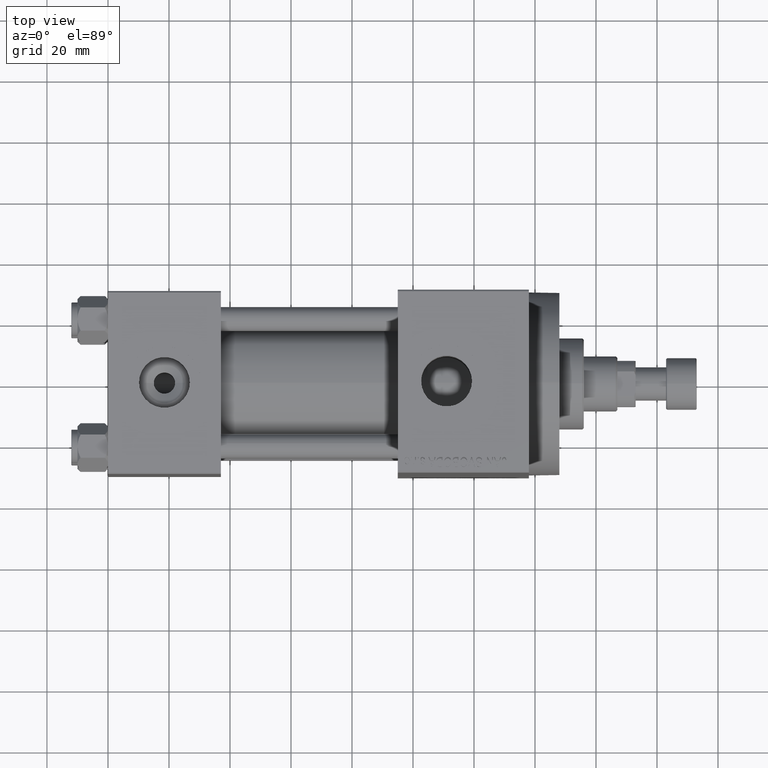
[diagram: clean part render]
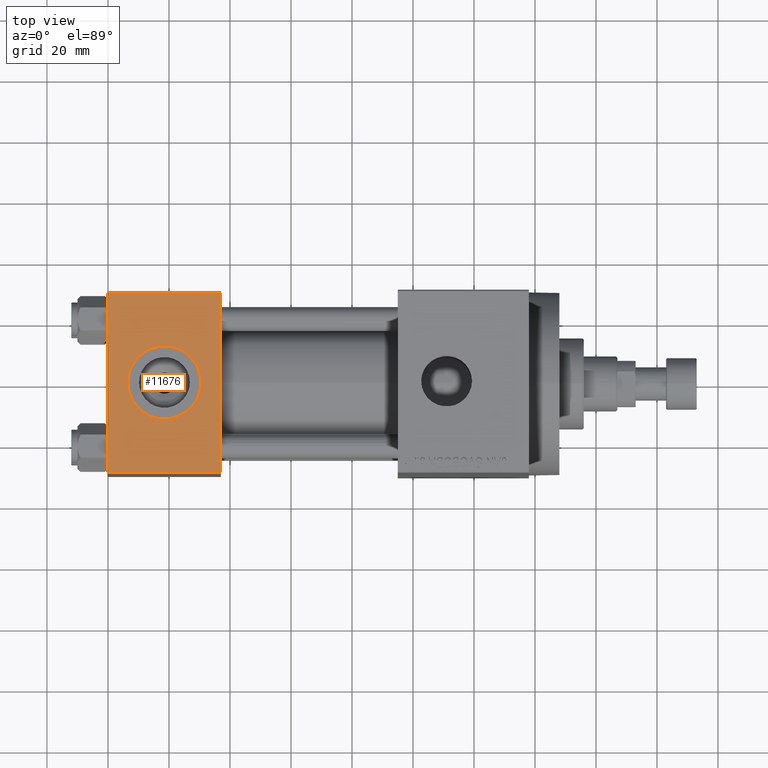
[diagram: same view with one face highlighted and labeled with its STEP entity id]
A machine part, top view. The second image highlights one B-rep face of the part: STEP entity #11676.
In plain terms, the highlighted planar face has unit normal (0, 0, -1).
Its self-contained STEP definition (entity closure, byte-faithful):
#3064 = EDGE_CURVE ( 'NONE', #12866, #40468, #8827, .T. ) ;
#3911 = VECTOR ( 'NONE', #22129, 1000.000000000000000 ) ;
#3927 = ORIENTED_EDGE ( 'NONE', *, *, #34819, .T. ) ;
#3991 = PLANE ( 'NONE',  #42038 ) ;
#5613 = ORIENTED_EDGE ( 'NONE', *, *, #38698, .T. ) ;
#5669 = LINE ( 'NONE', #20431, #3911 ) ;
#6142 = CARTESIAN_POINT ( 'NONE',  ( 37.00000000000000000, 29.99999999999999289, 30.00000000000000000 ) ) ;
#6536 = CARTESIAN_POINT ( 'NONE',  ( 6.499999999999997335, -1.999870792976790833E-15, 29.99999999999999645 ) ) ;
#7628 = FACE_BOUND ( 'NONE', #20194, .T. ) ;
#8827 = LINE ( 'NONE', #6142, #38722 ) ;
#11056 = VERTEX_POINT ( 'NONE', #18966 ) ;
#11676 = ADVANCED_FACE ( 'NONE', ( #7628, #36417 ), #3991, .F. ) ;
#11958 = LINE ( 'NONE', #37374, #44242 ) ;
#12866 = VERTEX_POINT ( 'NONE', #14831 ) ;
#14689 = VERTEX_POINT ( 'NONE', #6536 ) ;
#14831 = CARTESIAN_POINT ( 'NONE',  ( 37.00000000000000000, 29.49999999999999289, 30.00000000000000000 ) ) ;
#15793 = CARTESIAN_POINT ( 'NONE',  ( 37.00000000000000000, -29.49999999999998579, 29.99999999999999289 ) ) ;
#16074 = CARTESIAN_POINT ( 'NONE',  ( 0.000000000000000000, 29.49999999999999289, 30.00000000000000000 ) ) ;
#16411 = CARTESIAN_POINT ( 'NONE',  ( 0.000000000000000000, 29.99999999999999289, 30.00000000000000000 ) ) ;
#17151 = DIRECTION ( 'NONE',  ( 1.000000000000000000, 0.000000000000000000, 0.000000000000000000 ) ) ;
#18043 = DIRECTION ( 'NONE',  ( 0.000000000000000000, 1.156482317317871725E-16, -1.000000000000000000 ) ) ;
#18966 = CARTESIAN_POINT ( 'NONE',  ( 30.50000000000000000, -3.469446951953614978E-15, 29.99999999999999645 ) ) ;
#20194 = EDGE_LOOP ( 'NONE', ( #21060, #23130 ) ) ;
#20393 = VERTEX_POINT ( 'NONE', #16074 ) ;
#20431 = CARTESIAN_POINT ( 'NONE',  ( 37.00000000000000000, -29.50000000000000000, 29.99999999999999289 ) ) ;
#20788 = CARTESIAN_POINT ( 'NONE',  ( 18.50000000000000000, -3.469446951953614978E-15, 29.99999999999999645 ) ) ;
#21060 = ORIENTED_EDGE ( 'NONE', *, *, #34340, .F. ) ;
#22129 = DIRECTION ( 'NONE',  ( 1.000000000000000000, 0.000000000000000000, 0.000000000000000000 ) ) ;
#23130 = ORIENTED_EDGE ( 'NONE', *, *, #42420, .F. ) ;
#23218 = LINE ( 'NONE', #16411, #29472 ) ;
#24947 = CIRCLE ( 'NONE', #36545, 12.00000000000000000 ) ;
#25580 = CIRCLE ( 'NONE', #37136, 12.00000000000000000 ) ;
#27194 = CARTESIAN_POINT ( 'NONE',  ( 18.50000000000000000, -3.469446951953614978E-15, 29.99999999999999645 ) ) ;
#28550 = VERTEX_POINT ( 'NONE', #38954 ) ;
#29472 = VECTOR ( 'NONE', #37961, 1000.000000000000000 ) ;
#33026 = CARTESIAN_POINT ( 'NONE',  ( 37.00000000000000000, 29.99999999999999289, 30.00000000000000000 ) ) ;
#33499 = DIRECTION ( 'NONE',  ( 0.000000000000000000, 1.000000000000000000, 1.156482317317871725E-16 ) ) ;
#33769 = EDGE_CURVE ( 'NONE', #28550, #40468, #5669, .T. ) ;
#34204 = DIRECTION ( 'NONE',  ( 0.000000000000000000, 0.000000000000000000, 1.000000000000000000 ) ) ;
#34340 = EDGE_CURVE ( 'NONE', #11056, #14689, #25580, .T. ) ;
#34784 = ORIENTED_EDGE ( 'NONE', *, *, #3064, .F. ) ;
#34819 = EDGE_CURVE ( 'NONE', #20393, #28550, #23218, .T. ) ;
#35550 = DIRECTION ( 'NONE',  ( 0.000000000000000000, 0.000000000000000000, 1.000000000000000000 ) ) ;
#36417 = FACE_OUTER_BOUND ( 'NONE', #42830, .T. ) ;
#36545 = AXIS2_PLACEMENT_3D ( 'NONE', #27194, #34204, #37602 ) ;
#37136 = AXIS2_PLACEMENT_3D ( 'NONE', #20788, #35550, #17151 ) ;
#37374 = CARTESIAN_POINT ( 'NONE',  ( 0.000000000000000000, 29.49999999999999289, 30.00000000000000000 ) ) ;
#37602 = DIRECTION ( 'NONE',  ( 1.000000000000000000, 0.000000000000000000, 0.000000000000000000 ) ) ;
#37961 = DIRECTION ( 'NONE',  ( 0.000000000000000000, -1.000000000000000000, -1.156482317317871725E-16 ) ) ;
#38698 = EDGE_CURVE ( 'NONE', #12866, #20393, #11958, .T. ) ;
#38722 = VECTOR ( 'NONE', #38800, 1000.000000000000000 ) ;
#38800 = DIRECTION ( 'NONE',  ( 0.000000000000000000, -1.000000000000000000, -1.156482317317871725E-16 ) ) ;
#38954 = CARTESIAN_POINT ( 'NONE',  ( 0.000000000000000000, -29.49999999999998579, 29.99999999999999289 ) ) ;
#40468 = VERTEX_POINT ( 'NONE', #15793 ) ;
#41334 = ORIENTED_EDGE ( 'NONE', *, *, #33769, .T. ) ;
#41461 = DIRECTION ( 'NONE',  ( -1.000000000000000000, 0.000000000000000000, 0.000000000000000000 ) ) ;
#42038 = AXIS2_PLACEMENT_3D ( 'NONE', #33026, #18043, #33499 ) ;
#42420 = EDGE_CURVE ( 'NONE', #14689, #11056, #24947, .T. ) ;
#42830 = EDGE_LOOP ( 'NONE', ( #3927, #41334, #34784, #5613 ) ) ;
#44242 = VECTOR ( 'NONE', #41461, 1000.000000000000000 ) ;